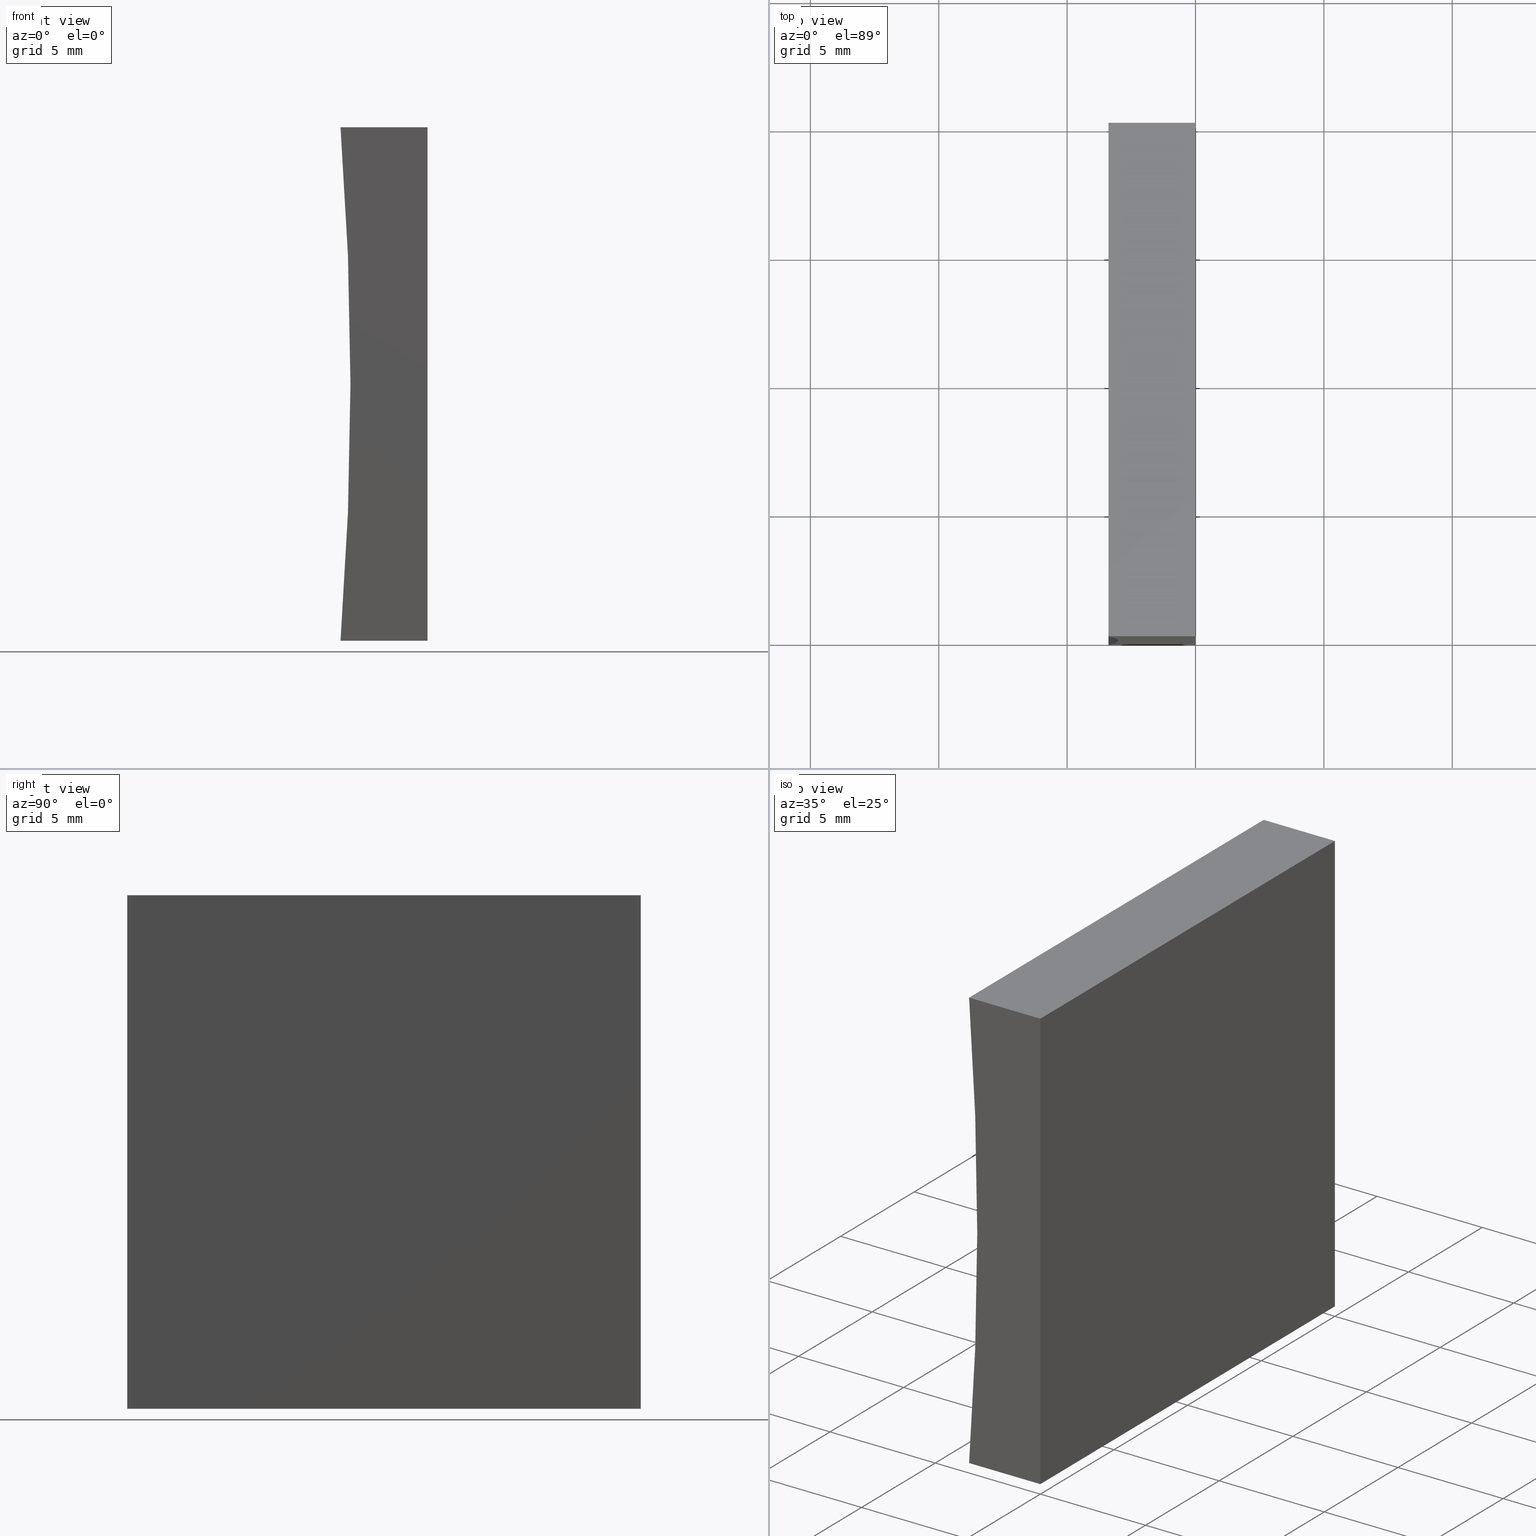
[diagram: canonical four-view strip — front | top / right | iso, engineering-drawing reading convention]
A machine part, canonical four-view strip (front | top / right | iso — engineering-drawing reading convention). The complete STEP part file that produces these views, byte-faithful:
ISO-10303-21;
HEADER;
FILE_DESCRIPTION (( 'STEP AP214' ),
    '1' );
FILE_NAME ('155350.STEP',
    '2019-06-28T06:05:55',
    ( 'user' ),
    ( '΢���й�' ),
    'SwSTEP 2.0',
    'SolidWorks 2016',
    '' );
FILE_SCHEMA (( 'AUTOMOTIVE_DESIGN' ));
ENDSEC;

DATA;
#1 =( NAMED_UNIT ( * ) SI_UNIT ( $, .STERADIAN. ) SOLID_ANGLE_UNIT ( ) );
#2 = CYLINDRICAL_SURFACE ( 'NONE', #141, 129.2500000000000000 ) ;
#3 = CARTESIAN_POINT ( 'NONE',  ( 1.224646799147353300E-015, 0.0000000000000000000, 20.00000000000000000 ) ) ;
#4 = VECTOR ( 'NONE', #200, 1000.000000000000000 ) ;
#5 = PLANE ( 'NONE',  #186 ) ;
#6 = AXIS2_PLACEMENT_3D ( 'NONE', #155, #92, #27 ) ;
#7 = MANIFOLD_SOLID_BREP ( '͹̨-����1', #104 ) ;
#8 = PLANE ( 'NONE',  #101 ) ;
#9 = AXIS2_PLACEMENT_3D ( 'NONE', #24, #109, #15 ) ;
#10 = PRESENTATION_LAYER_ASSIGNMENT (  '', '', ( #97 ) ) ;
#11 = ORIENTED_EDGE ( 'NONE', *, *, #67, .F. ) ;
#12 = PLANE ( 'NONE',  #120 ) ;
#13 = CARTESIAN_POINT ( 'NONE',  ( -3.387427854322250000, 20.00000000000000000, 1.214306433183765000E-014 ) ) ;
#14 = LINE ( 'NONE', #80, #108 ) ;
#15 = DIRECTION ( 'NONE',  ( 0.0000000000000000000, 0.0000000000000000000, 1.000000000000000000 ) ) ;
#16 = UNCERTAINTY_MEASURE_WITH_UNIT (LENGTH_MEASURE( 1.000000000000000100E-005 ), #44, 'distance_accuracy_value', 'NONE');
#17 = UNCERTAINTY_MEASURE_WITH_UNIT (LENGTH_MEASURE( 1.000000000000000100E-005 ), #62, 'distance_accuracy_value', 'NONE');
#18 = LINE ( 'NONE', #59, #193 ) ;
#19 = PRESENTATION_STYLE_ASSIGNMENT (( #116 ) ) ;
#20 = CIRCLE ( 'NONE', #9, 129.2500000000000000 ) ;
#21 = PRODUCT_RELATED_PRODUCT_CATEGORY ( 'part', '', ( #73 ) ) ;
#22 = EDGE_CURVE ( 'NONE', #167, #133, #14, .T. ) ;
#23 = LINE ( 'NONE', #48, #42 ) ;
#25 = EDGE_LOOP ( 'NONE', ( #28, #161, #191, #111 ) ) ;
#24 = CARTESIAN_POINT ( 'NONE',  ( -132.2500000000000000, 20.00000000000000000, 10.00000000000001600 ) ) ;
#26 = DIRECTION ( 'NONE',  ( -0.0000000000000000000, -1.000000000000000000, -0.0000000000000000000 ) ) ;
#27 = DIRECTION ( 'NONE',  ( 0.0000000000000000000, 0.0000000000000000000, 1.000000000000000000 ) ) ;
#28 = ORIENTED_EDGE ( 'NONE', *, *, #47, .T. ) ;
#29 = VERTEX_POINT ( 'NONE', #78 ) ;
#30 = FILL_AREA_STYLE_COLOUR ( '', #182 ) ;
#31 = PRODUCT_DEFINITION ( 'δ֪', '', #64, #94 ) ;
#32 = DIRECTION ( 'NONE',  ( 0.0000000000000000000, 1.000000000000000000, 0.0000000000000000000 ) ) ;
#33 = VECTOR ( 'NONE', #151, 1000.000000000000000 ) ;
#34 = PLANE ( 'NONE',  #106 ) ;
#35 = VERTEX_POINT ( 'NONE', #201 ) ;
#36 =( NAMED_UNIT ( * ) PLANE_ANGLE_UNIT ( ) SI_UNIT ( $, .RADIAN. ) );
#37 = LINE ( 'NONE', #13, #148 ) ;
#38 =( NAMED_UNIT ( * ) SI_UNIT ( $, .STERADIAN. ) SOLID_ANGLE_UNIT ( ) );
#39 = CARTESIAN_POINT ( 'NONE',  ( -132.2500000000000000, 20.00000000000000000, 10.00000000000001600 ) ) ;
#40 = SURFACE_STYLE_FILL_AREA ( #165 ) ;
#41 = DIRECTION ( 'NONE',  ( -1.000000000000000000, 0.0000000000000000000, 6.123233995736766000E-017 ) ) ;
#42 = VECTOR ( 'NONE', #180, 1000.000000000000000 ) ;
#43 = VERTEX_POINT ( 'NONE', #183 ) ;
#44 =( LENGTH_UNIT ( ) NAMED_UNIT ( * ) SI_UNIT ( .MILLI., .METRE. ) );
#45 = ORIENTED_EDGE ( 'NONE', *, *, #89, .F. ) ;
#46 = ADVANCED_FACE ( 'NONE', ( #123 ), #8, .T. ) ;
#47 = EDGE_CURVE ( 'NONE', #133, #29, #61, .T. ) ;
#48 = CARTESIAN_POINT ( 'NONE',  ( 0.0000000000000000000, 20.00000000000000000, 0.0000000000000000000 ) ) ;
#49 = VECTOR ( 'NONE', #187, 1000.000000000000000 ) ;
#50 = DIRECTION ( 'NONE',  ( -6.123233995736766000E-017, -0.0000000000000000000, -1.000000000000000000 ) ) ;
#51 =( GEOMETRIC_REPRESENTATION_CONTEXT ( 3 ) GLOBAL_UNCERTAINTY_ASSIGNED_CONTEXT ( ( #17 ) ) GLOBAL_UNIT_ASSIGNED_CONTEXT ( ( #62, #115, #1 ) ) REPRESENTATION_CONTEXT ( 'NONE', 'WORKASPACE' ) );
#52 = EDGE_LOOP ( 'NONE', ( #110, #114, #195, #139 ) ) ;
#53 = SHAPE_DEFINITION_REPRESENTATION ( #125, #81 ) ;
#54 = STYLED_ITEM ( 'NONE', ( #19 ), #81 ) ;
#55 = DIRECTION ( 'NONE',  ( 0.0000000000000000000, 0.0000000000000000000, 1.000000000000000000 ) ) ;
#56 = LINE ( 'NONE', #140, #87 ) ;
#57 = EDGE_CURVE ( 'NONE', #29, #194, #18, .T. ) ;
#58 = APPLICATION_PROTOCOL_DEFINITION ( 'draft international standard', 'automotive_design', 1998, #166 ) ;
#59 = CARTESIAN_POINT ( 'NONE',  ( 0.0000000000000000000, 0.0000000000000000000, 0.0000000000000000000 ) ) ;
#60 = CARTESIAN_POINT ( 'NONE',  ( -3.387427854322250500, 20.00000000000000000, 20.00000000000000000 ) ) ;
#61 = LINE ( 'NONE', #3, #49 ) ;
#62 =( LENGTH_UNIT ( ) NAMED_UNIT ( * ) SI_UNIT ( .MILLI., .METRE. ) );
#63 = ORIENTED_EDGE ( 'NONE', *, *, #72, .T. ) ;
#64 = PRODUCT_DEFINITION_FORMATION_WITH_SPECIFIED_SOURCE ( '�κ�', '', #73, .NOT_KNOWN. ) ;
#65 = CARTESIAN_POINT ( 'NONE',  ( 1.224646799147353300E-015, 20.00000000000000000, 20.00000000000000000 ) ) ;
#66 = ORIENTED_EDGE ( 'NONE', *, *, #57, .T. ) ;
#67 = EDGE_CURVE ( 'NONE', #43, #35, #37, .T. ) ;
#68 = EDGE_CURVE ( 'NONE', #124, #117, #130, .T. ) ;
#69 = PRODUCT_CONTEXT ( 'NONE', #166, 'mechanical' ) ;
#70 = EDGE_LOOP ( 'NONE', ( #162, #11, #145, #174 ) ) ;
#71 = FACE_OUTER_BOUND ( 'NONE', #70, .T. ) ;
#72 = EDGE_CURVE ( 'NONE', #167, #124, #56, .T. ) ;
#73 = PRODUCT ( '155350', '155350', '', ( #69 ) ) ;
#74 = ORIENTED_EDGE ( 'NONE', *, *, #68, .F. ) ;
#75 = VECTOR ( 'NONE', #50, 1000.000000000000000 ) ;
#76 = CARTESIAN_POINT ( 'NONE',  ( 0.0000000000000000000, 20.00000000000000000, 0.0000000000000000000 ) ) ;
#77 = CARTESIAN_POINT ( 'NONE',  ( 0.0000000000000000000, 20.00000000000000000, 0.0000000000000000000 ) ) ;
#78 = CARTESIAN_POINT ( 'NONE',  ( 1.224646799147353300E-015, 0.0000000000000000000, 20.00000000000000000 ) ) ;
#79 = CIRCLE ( 'NONE', #6, 129.2500000000000000 ) ;
#80 = CARTESIAN_POINT ( 'NONE',  ( -3.387427854322250500, 20.00000000000000000, 20.00000000000000000 ) ) ;
#81 = ADVANCED_BREP_SHAPE_REPRESENTATION ( '155350', ( #7, #82 ), #127 ) ;
#82 = AXIS2_PLACEMENT_3D ( 'NONE', #126, #55, #158 ) ;
#83 = EDGE_LOOP ( 'NONE', ( #172, #196, #63, #95 ) ) ;
#84 =( NAMED_UNIT ( * ) PLANE_ANGLE_UNIT ( ) SI_UNIT ( $, .RADIAN. ) );
#85 = DIRECTION ( 'NONE',  ( 0.0000000000000000000, -0.0000000000000000000, 1.000000000000000000 ) ) ;
#86 = EDGE_CURVE ( 'NONE', #35, #133, #79, .T. ) ;
#87 = VECTOR ( 'NONE', #188, 1000.000000000000000 ) ;
#88 = PLANE ( 'NONE',  #190 ) ;
#89 = EDGE_CURVE ( 'NONE', #194, #35, #99, .T. ) ;
#90 = EDGE_CURVE ( 'NONE', #43, #167, #20, .T. ) ;
#91 = EDGE_LOOP ( 'NONE', ( #45, #184, #204, #100 ) ) ;
#92 = DIRECTION ( 'NONE',  ( -0.0000000000000000000, -1.000000000000000000, -0.0000000000000000000 ) ) ;
#93 = CARTESIAN_POINT ( 'NONE',  ( 0.0000000000000000000, 20.00000000000000000, 0.0000000000000000000 ) ) ;
#94 = PRODUCT_DEFINITION_CONTEXT ( 'detailed design', #176, 'design' ) ;
#95 = ORIENTED_EDGE ( 'NONE', *, *, #68, .T. ) ;
#96 = FILL_AREA_STYLE ('',( #134 ) ) ;
#97 = STYLED_ITEM ( 'NONE', ( #198 ), #7 ) ;
#98 = DIRECTION ( 'NONE',  ( -6.123233995736766000E-017, -0.0000000000000000000, -1.000000000000000000 ) ) ;
#99 = LINE ( 'NONE', #189, #4 ) ;
#100 = ORIENTED_EDGE ( 'NONE', *, *, #86, .F. ) ;
#101 = AXIS2_PLACEMENT_3D ( 'NONE', #181, #170, #156 ) ;
#102 = ADVANCED_FACE ( 'NONE', ( #138 ), #34, .F. ) ;
#103 = LINE ( 'NONE', #65, #178 ) ;
#104 = CLOSED_SHELL ( 'NONE', ( #122, #173, #119, #102, #46, #113 ) ) ;
#105 = CARTESIAN_POINT ( 'NONE',  ( 0.0000000000000000000, 20.00000000000000000, 0.0000000000000000000 ) ) ;
#106 = AXIS2_PLACEMENT_3D ( 'NONE', #76, #41, #129 ) ;
#107 = UNCERTAINTY_MEASURE_WITH_UNIT (LENGTH_MEASURE( 1.000000000000000100E-005 ), #112, 'distance_accuracy_value', 'NONE');
#108 = VECTOR ( 'NONE', #132, 1000.000000000000000 ) ;
#109 = DIRECTION ( 'NONE',  ( -0.0000000000000000000, -1.000000000000000000, -0.0000000000000000000 ) ) ;
#110 = ORIENTED_EDGE ( 'NONE', *, *, #86, .T. ) ;
#111 = ORIENTED_EDGE ( 'NONE', *, *, #22, .T. ) ;
#112 =( LENGTH_UNIT ( ) NAMED_UNIT ( * ) SI_UNIT ( .MILLI., .METRE. ) );
#113 = ADVANCED_FACE ( 'NONE', ( #121 ), #88, .F. ) ;
#114 = ORIENTED_EDGE ( 'NONE', *, *, #22, .F. ) ;
#115 =( NAMED_UNIT ( * ) PLANE_ANGLE_UNIT ( ) SI_UNIT ( $, .RADIAN. ) );
#116 = SURFACE_STYLE_USAGE ( .BOTH. , #146 ) ;
#117 = VERTEX_POINT ( 'NONE', #171 ) ;
#118 = SURFACE_SIDE_STYLE ('',( #153 ) ) ;
#119 = ADVANCED_FACE ( 'NONE', ( #157 ), #5, .F. ) ;
#120 = AXIS2_PLACEMENT_3D ( 'NONE', #105, #85, #160 ) ;
#121 = FACE_OUTER_BOUND ( 'NONE', #91, .T. ) ;
#122 = ADVANCED_FACE ( 'NONE', ( #71 ), #12, .F. ) ;
#123 = FACE_OUTER_BOUND ( 'NONE', #83, .T. ) ;
#124 = VERTEX_POINT ( 'NONE', #149 ) ;
#125 = PRODUCT_DEFINITION_SHAPE ( 'NONE', 'NONE',  #31 ) ;
#126 = CARTESIAN_POINT ( 'NONE',  ( 0.0000000000000000000, 0.0000000000000000000, 0.0000000000000000000 ) ) ;
#127 =( GEOMETRIC_REPRESENTATION_CONTEXT ( 3 ) GLOBAL_UNCERTAINTY_ASSIGNED_CONTEXT ( ( #107 ) ) GLOBAL_UNIT_ASSIGNED_CONTEXT ( ( #112, #36, #38 ) ) REPRESENTATION_CONTEXT ( 'NONE', 'WORKASPACE' ) );
#128 = CARTESIAN_POINT ( 'NONE',  ( -3.387427854322250500, 0.0000000000000000000, 20.00000000000000000 ) ) ;
#129 = DIRECTION ( 'NONE',  ( 6.123233995736766000E-017, 0.0000000000000000000, 1.000000000000000000 ) ) ;
#130 = LINE ( 'NONE', #77, #75 ) ;
#131 = ORIENTED_EDGE ( 'NONE', *, *, #164, .F. ) ;
#133 = VERTEX_POINT ( 'NONE', #128 ) ;
#132 = DIRECTION ( 'NONE',  ( -0.0000000000000000000, -1.000000000000000000, -0.0000000000000000000 ) ) ;
#134 = FILL_AREA_STYLE_COLOUR ( '', #203 ) ;
#135 = CARTESIAN_POINT ( 'NONE',  ( -132.2500000000000000, 0.0000000000000000000, 10.00000000000001600 ) ) ;
#136 = DIRECTION ( 'NONE',  ( -1.000000000000000000, 0.0000000000000000000, -0.0000000000000000000 ) ) ;
#137 = APPLICATION_PROTOCOL_DEFINITION ( 'draft international standard', 'automotive_design', 1998, #176 ) ;
#138 = FACE_OUTER_BOUND ( 'NONE', #143, .T. ) ;
#139 = ORIENTED_EDGE ( 'NONE', *, *, #67, .T. ) ;
#140 = CARTESIAN_POINT ( 'NONE',  ( 1.224646799147353300E-015, 20.00000000000000000, 20.00000000000000000 ) ) ;
#141 = AXIS2_PLACEMENT_3D ( 'NONE', #39, #197, #185 ) ;
#142 = CARTESIAN_POINT ( 'NONE',  ( 1.224646799147353300E-015, 20.00000000000000000, 20.00000000000000000 ) ) ;
#143 = EDGE_LOOP ( 'NONE', ( #66, #131, #74, #177 ) ) ;
#144 = EDGE_CURVE ( 'NONE', #117, #43, #150, .T. ) ;
#145 = ORIENTED_EDGE ( 'NONE', *, *, #144, .F. ) ;
#146 = SURFACE_SIDE_STYLE ('',( #40 ) ) ;
#147 = DIRECTION ( 'NONE',  ( 0.0000000000000000000, 0.0000000000000000000, -1.000000000000000000 ) ) ;
#148 = VECTOR ( 'NONE', #192, 1000.000000000000000 ) ;
#149 = CARTESIAN_POINT ( 'NONE',  ( 1.224646799147353300E-015, 20.00000000000000000, 20.00000000000000000 ) ) ;
#150 = LINE ( 'NONE', #93, #33 ) ;
#151 = DIRECTION ( 'NONE',  ( -1.000000000000000000, 0.0000000000000000000, 0.0000000000000000000 ) ) ;
#153 = SURFACE_STYLE_FILL_AREA ( #96 ) ;
#152 = SURFACE_STYLE_USAGE ( .BOTH. , #118 ) ;
#154 = EDGE_CURVE ( 'NONE', #124, #29, #103, .T. ) ;
#155 = CARTESIAN_POINT ( 'NONE',  ( -132.2500000000000000, 0.0000000000000000000, 10.00000000000001600 ) ) ;
#156 = DIRECTION ( 'NONE',  ( 0.0000000000000000000, -0.0000000000000000000, 1.000000000000000000 ) ) ;
#157 = FACE_OUTER_BOUND ( 'NONE', #25, .T. ) ;
#158 = DIRECTION ( 'NONE',  ( 1.000000000000000000, 0.0000000000000000000, 0.0000000000000000000 ) ) ;
#159 =( GEOMETRIC_REPRESENTATION_CONTEXT ( 3 ) GLOBAL_UNCERTAINTY_ASSIGNED_CONTEXT ( ( #16 ) ) GLOBAL_UNIT_ASSIGNED_CONTEXT ( ( #44, #84, #202 ) ) REPRESENTATION_CONTEXT ( 'NONE', 'WORKASPACE' ) );
#160 = DIRECTION ( 'NONE',  ( 1.000000000000000000, 0.0000000000000000000, -0.0000000000000000000 ) ) ;
#161 = ORIENTED_EDGE ( 'NONE', *, *, #154, .F. ) ;
#162 = ORIENTED_EDGE ( 'NONE', *, *, #89, .T. ) ;
#163 = DIRECTION ( 'NONE',  ( 0.0000000000000000000, -0.0000000000000000000, 1.000000000000000000 ) ) ;
#164 = EDGE_CURVE ( 'NONE', #117, #194, #23, .T. ) ;
#165 = FILL_AREA_STYLE ('',( #30 ) ) ;
#166 = APPLICATION_CONTEXT ( 'automotive_design' ) ;
#167 = VERTEX_POINT ( 'NONE', #60 ) ;
#168 = MECHANICAL_DESIGN_GEOMETRIC_PRESENTATION_REPRESENTATION (  '', ( #97 ), #159 ) ;
#169 = CARTESIAN_POINT ( 'NONE',  ( 0.0000000000000000000, 0.0000000000000000000, 0.0000000000000000000 ) ) ;
#170 = DIRECTION ( 'NONE',  ( 0.0000000000000000000, 1.000000000000000000, 0.0000000000000000000 ) ) ;
#172 = ORIENTED_EDGE ( 'NONE', *, *, #144, .T. ) ;
#171 = CARTESIAN_POINT ( 'NONE',  ( 0.0000000000000000000, 20.00000000000000000, 0.0000000000000000000 ) ) ;
#173 = ADVANCED_FACE ( 'NONE', ( #175 ), #2, .F. ) ;
#174 = ORIENTED_EDGE ( 'NONE', *, *, #164, .T. ) ;
#175 = FACE_OUTER_BOUND ( 'NONE', #52, .T. ) ;
#176 = APPLICATION_CONTEXT ( 'automotive_design' ) ;
#177 = ORIENTED_EDGE ( 'NONE', *, *, #154, .T. ) ;
#178 = VECTOR ( 'NONE', #26, 1000.000000000000000 ) ;
#179 = MECHANICAL_DESIGN_GEOMETRIC_PRESENTATION_REPRESENTATION (  '', ( #54 ), #51 ) ;
#180 = DIRECTION ( 'NONE',  ( -0.0000000000000000000, -1.000000000000000000, -0.0000000000000000000 ) ) ;
#181 = CARTESIAN_POINT ( 'NONE',  ( -132.2500000000000000, 20.00000000000000000, 10.00000000000001600 ) ) ;
#182 = COLOUR_RGB ( '',1.000000000000000000, 1.000000000000000000, 1.000000000000000000 ) ;
#183 = CARTESIAN_POINT ( 'NONE',  ( -3.387427854322250000, 20.00000000000000000, 1.214306433183765000E-014 ) ) ;
#184 = ORIENTED_EDGE ( 'NONE', *, *, #57, .F. ) ;
#185 = DIRECTION ( 'NONE',  ( 0.0000000000000000000, 0.0000000000000000000, -1.000000000000000000 ) ) ;
#186 = AXIS2_PLACEMENT_3D ( 'NONE', #142, #147, #136 ) ;
#187 = DIRECTION ( 'NONE',  ( 1.000000000000000000, -0.0000000000000000000, -0.0000000000000000000 ) ) ;
#188 = DIRECTION ( 'NONE',  ( 1.000000000000000000, -0.0000000000000000000, -0.0000000000000000000 ) ) ;
#189 = CARTESIAN_POINT ( 'NONE',  ( 0.0000000000000000000, 0.0000000000000000000, 0.0000000000000000000 ) ) ;
#190 = AXIS2_PLACEMENT_3D ( 'NONE', #135, #32, #163 ) ;
#191 = ORIENTED_EDGE ( 'NONE', *, *, #72, .F. ) ;
#192 = DIRECTION ( 'NONE',  ( -0.0000000000000000000, -1.000000000000000000, -0.0000000000000000000 ) ) ;
#193 = VECTOR ( 'NONE', #98, 1000.000000000000000 ) ;
#194 = VERTEX_POINT ( 'NONE', #169 ) ;
#195 = ORIENTED_EDGE ( 'NONE', *, *, #90, .F. ) ;
#196 = ORIENTED_EDGE ( 'NONE', *, *, #90, .T. ) ;
#197 = DIRECTION ( 'NONE',  ( -0.0000000000000000000, -1.000000000000000000, -0.0000000000000000000 ) ) ;
#198 = PRESENTATION_STYLE_ASSIGNMENT (( #152 ) ) ;
#199 = PRESENTATION_LAYER_ASSIGNMENT (  '', '', ( #54 ) ) ;
#200 = DIRECTION ( 'NONE',  ( -1.000000000000000000, 0.0000000000000000000, 0.0000000000000000000 ) ) ;
#201 = CARTESIAN_POINT ( 'NONE',  ( -3.387427854322250000, 0.0000000000000000000, 1.214306433183765000E-014 ) ) ;
#202 =( NAMED_UNIT ( * ) SI_UNIT ( $, .STERADIAN. ) SOLID_ANGLE_UNIT ( ) );
#203 = COLOUR_RGB ( '',1.000000000000000000, 1.000000000000000000, 1.000000000000000000 ) ;
#204 = ORIENTED_EDGE ( 'NONE', *, *, #47, .F. ) ;
ENDSEC;
END-ISO-10303-21;
